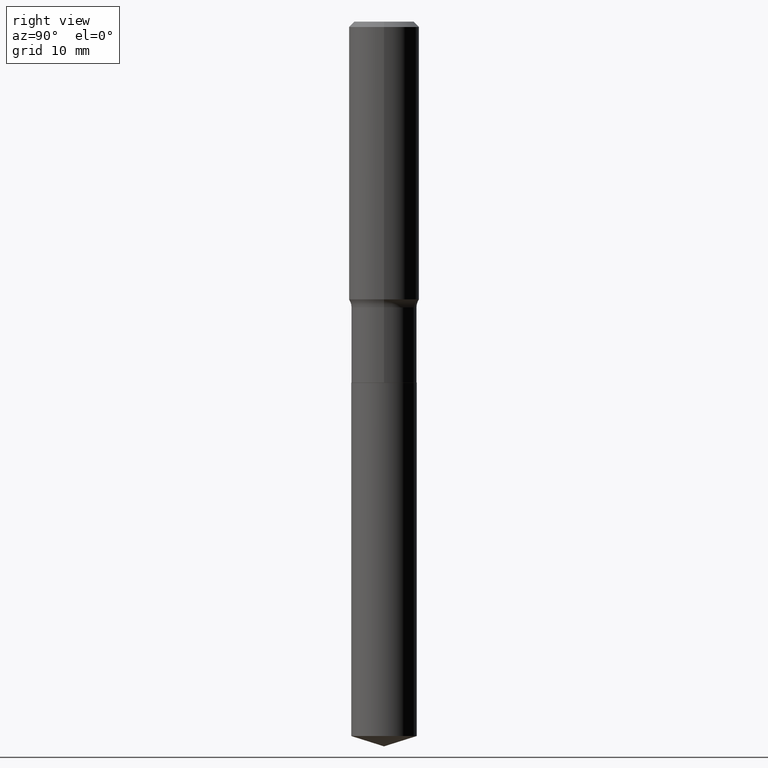
[diagram: clean part render]
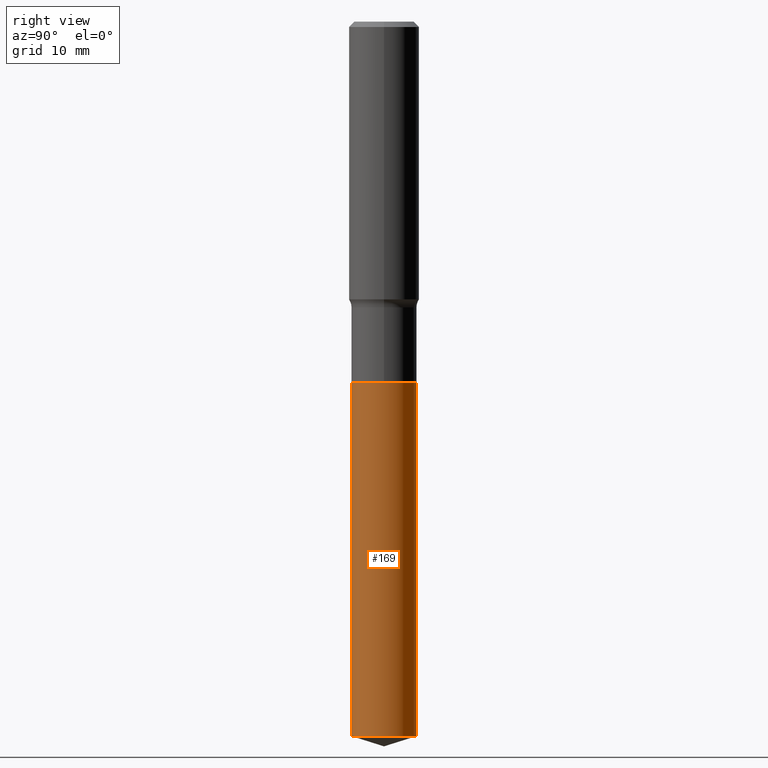
[diagram: same view with one face highlighted and labeled with its STEP entity id]
A machine part, right view. The second image highlights one B-rep face of the part: STEP entity #169.
In plain terms, the highlighted cylindrical surface (edge-blend (fillet) strip) has radius 4.6495 mm, axis along (-0, 0, 1).
Its self-contained STEP definition (entity closure, byte-faithful):
#15 = EDGE_LOOP ( 'NONE', ( #474, #165, #310, #342 ) ) ;
#31 = CIRCLE ( 'NONE', #286, 0.1830499999999999905 ) ;
#63 = EDGE_CURVE ( 'NONE', #130, #127, #31, .T. ) ;
#83 = CYLINDRICAL_SURFACE ( 'NONE', #447, 0.1830499999999999905 ) ;
#87 = CARTESIAN_POINT ( 'NONE',  ( 4.938868800971501707E-29, -7.051395711927616472E-15, -2.019600000000000062 ) ) ;
#106 = CARTESIAN_POINT ( 'NONE',  ( 9.775646628240964967E-29, -1.395655387400157746E-14, -3.997384556695702695 ) ) ;
#108 = DIRECTION ( 'NONE',  ( -6.982962677686264344E-15, -1.000000000000000000, 2.984810700534567995E-15 ) ) ;
#116 = VECTOR ( 'NONE', #382, 39.37007874015748143 ) ;
#118 = EDGE_CURVE ( 'NONE', #243, #183, #254, .T. ) ;
#125 = LINE ( 'NONE', #240, #375 ) ;
#127 = VERTEX_POINT ( 'NONE', #370 ) ;
#130 = VERTEX_POINT ( 'NONE', #185 ) ;
#157 = DIRECTION ( 'NONE',  ( -2.445553440537678294E-29, 3.491360137633217675E-15, 1.000000000000000000 ) ) ;
#165 = ORIENTED_EDGE ( 'NONE', *, *, #273, .T. ) ;
#169 = ADVANCED_FACE ( 'NONE', ( #266 ), #83, .T. ) ;
#183 = VERTEX_POINT ( 'NONE', #297 ) ;
#185 = CARTESIAN_POINT ( 'NONE',  ( -1.278231318150421166E-15, -0.1830500000000070127, -2.019599999999999618 ) ) ;
#227 = LINE ( 'NONE', #337, #116 ) ;
#240 = CARTESIAN_POINT ( 'NONE',  ( -1.278231318150421166E-15, -0.1830500000000070127, -2.019599999999999618 ) ) ;
#243 = VERTEX_POINT ( 'NONE', #336 ) ;
#250 = DIRECTION ( 'NONE',  ( -2.445553440537678294E-29, 3.491360137633217675E-15, 1.000000000000000000 ) ) ;
#254 = CIRCLE ( 'NONE', #414, 0.1830499999999999905 ) ;
#266 = FACE_OUTER_BOUND ( 'NONE', #15, .T. ) ;
#273 = EDGE_CURVE ( 'NONE', #183, #127, #227, .T. ) ;
#286 = AXIS2_PLACEMENT_3D ( 'NONE', #403, #439, #481 ) ;
#297 = CARTESIAN_POINT ( 'NONE',  ( 1.300648477808960747E-15, 0.1830499999999859739, -3.997384556695703139 ) ) ;
#298 = EDGE_CURVE ( 'NONE', #243, #130, #125, .T. ) ;
#310 = ORIENTED_EDGE ( 'NONE', *, *, #63, .F. ) ;
#336 = CARTESIAN_POINT ( 'NONE',  ( -1.278231318150372651E-15, -0.1830500000000139238, -3.997384556695702251 ) ) ;
#337 = CARTESIAN_POINT ( 'NONE',  ( 1.300648477808912429E-15, 0.1830499999999929406, -2.019600000000000506 ) ) ;
#342 = ORIENTED_EDGE ( 'NONE', *, *, #298, .F. ) ;
#343 = DIRECTION ( 'NONE',  ( -2.445553440537678294E-29, 3.491360137633217675E-15, 1.000000000000000000 ) ) ;
#370 = CARTESIAN_POINT ( 'NONE',  ( 1.300648477808961339E-15, 0.1830499999999929406, -2.019600000000000506 ) ) ;
#375 = VECTOR ( 'NONE', #343, 39.37007874015748143 ) ;
#382 = DIRECTION ( 'NONE',  ( -2.445553440537678294E-29, 3.491360137633217675E-15, 1.000000000000000000 ) ) ;
#403 = CARTESIAN_POINT ( 'NONE',  ( 4.938868800971501707E-29, -7.051395711927616472E-15, -2.019600000000000062 ) ) ;
#414 = AXIS2_PLACEMENT_3D ( 'NONE', #106, #250, #108 ) ;
#439 = DIRECTION ( 'NONE',  ( -2.445553440537678294E-29, 3.491360137633217675E-15, 1.000000000000000000 ) ) ;
#447 = AXIS2_PLACEMENT_3D ( 'NONE', #87, #157, #451 ) ;
#451 = DIRECTION ( 'NONE',  ( -6.982962677686264344E-15, -1.000000000000000000, 2.984810700534567995E-15 ) ) ;
#474 = ORIENTED_EDGE ( 'NONE', *, *, #118, .T. ) ;
#481 = DIRECTION ( 'NONE',  ( -6.982962677686264344E-15, -1.000000000000000000, 2.984810700534567995E-15 ) ) ;